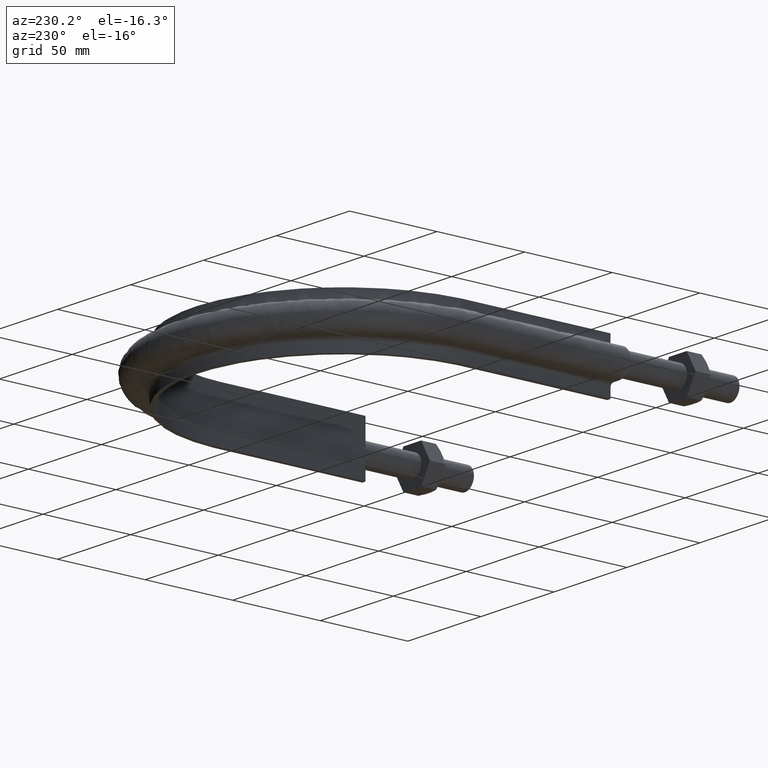
[diagram: clean part render]
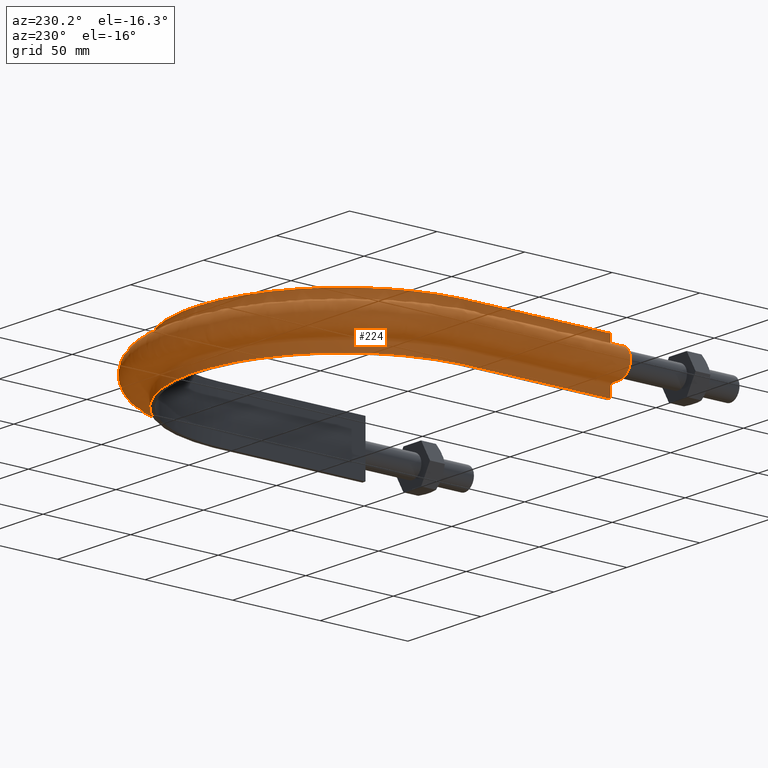
[diagram: same view with one face highlighted and labeled with its STEP entity id]
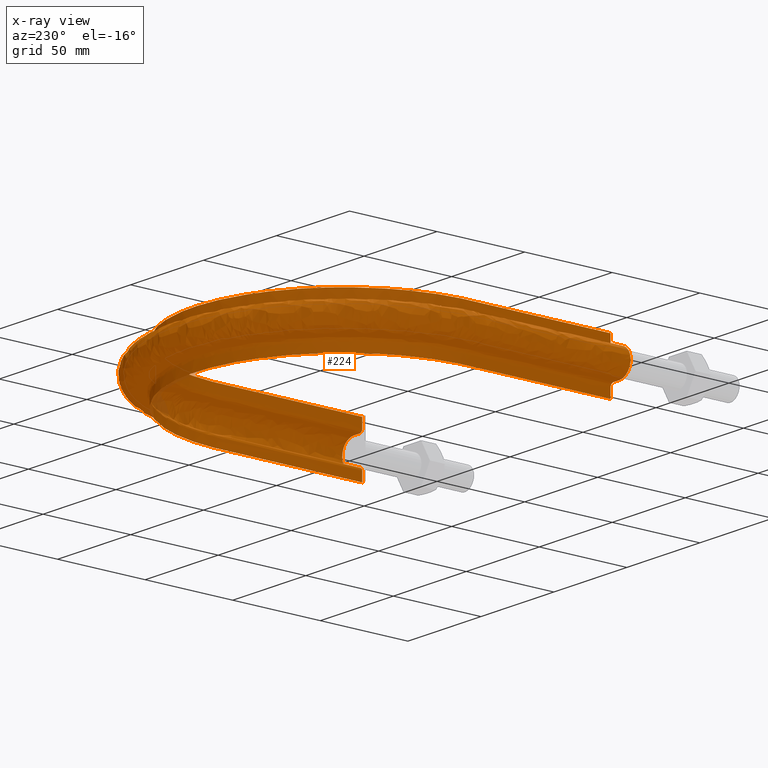
[diagram: x-ray of the same camera — body ghosted, the highlighted face saturated]
A machine part, auxiliary view. The second image highlights one B-rep face of the part: STEP entity #224.
The next image is the same camera in x-ray: the body ghosted, the highlighted face saturated — about 1% of this face is hidden behind the body in this view.
In plain terms, the highlighted face is a freeform B-spline surface patch.
Its self-contained STEP definition (entity closure, byte-faithful):
#224 = ADVANCED_FACE( '', ( #270 ), #271, .F. );
#270 = FACE_OUTER_BOUND( '', #367, .T. );
#271 = B_SPLINE_SURFACE_WITH_KNOTS( '', 3, 3, ( ( #368, #369, #370, #371, #372, #373, #374, #375, #376, #377, #378, #379, #380, #381, #382, #383, #384 ), ( #385, #386, #387, #388, #389, #390, #391, #392, #393, #394, #395, #396, #397, #398, #399, #400, #401 ), ( #402, #403, #404, #405, #406, #407, #408, #409, #410, #411, #412, #413, #414, #415, #416, #417, #418 ), ( #419, #420, #421, #422, #423, #424, #425, #426, #427, #428, #429, #430, #431, #432, #433, #434, #435 ), ( #436, #437, #438, #439, #440, #441, #442, #443, #444, #445, #446, #447, #448, #449, #450, #451, #452 ), ( #453, #454, #455, #456, #457, #458, #459, #460, #461, #462, #463, #464, #465, #466, #467, #468, #469 ), ( #470, #471, #472, #473, #474, #475, #476, #477, #478, #479, #480, #481, #482, #483, #484, #485, #486 ), ( #487, #488, #489, #490, #491, #492, #493, #494, #495, #496, #497, #498, #499, #500, #501, #502, #503 ), ( #504, #505, #506, #507, #508, #509, #510, #511, #512, #513, #514, #515, #516, #517, #518, #519, #520 ), ( #521, #522, #523, #524, #525, #526, #527, #528, #529, #530, #531, #532, #533, #534, #535, #536, #537 ), ( #538, #539, #540, #541, #542, #543, #544, #545, #546, #547, #548, #549, #550, #551, #552, #553, #554 ), ( #555, #556, #557, #558, #559, #560, #561, #562, #563, #564, #565, #566, #567, #568, #569, #570, #571 ), ( #572, #573, #574, #575, #576, #577, #578, #579, #580, #581, #582, #583, #584, #585, #586, #587, #588 ), ( #589, #590, #591, #592, #593, #594, #595, #596, #597, #598, #599, #600, #601, #602, #603, #604, #605 ), ( #606, #607, #608, #609, #610, #611, #612, #613, #614, #615, #616, #617, #618, #619, #620, #621, #622 ), ( #623, #624, #625, #626, #627, #628, #629, #630, #631, #632, #633, #634, #635, #636, #637, #638, #639 ), ( #640, #641, #642, #643, #644, #645, #646, #647, #648, #649, #650, #651, #652, #653, #654, #655, #656 ), ( #657, #658, #659, #660, #661, #662, #663, #664, #665, #666, #667, #668, #669, #670, #671, #672, #673 ), ( #674, #675, #676, #677, #678, #679, #680, #681, #682, #683, #684, #685, #686, #687, #688, #689, #690 ), ( #691, #692, #693, #694, #695, #696, #697, #698, #699, #700, #701, #702, #703, #704, #705, #706, #707 ), ( #708, #709, #710, #711, #712, #713, #714, #715, #716, #717, #718, #719, #720, #721, #722, #723, #724 ), ( #725, #726, #727, #728, #729, #730, #731, #732, #733, #734, #735, #736, #737, #738, #739, #740, #741 ), ( #742, #743, #744, #745, #746, #747, #748, #749, #750, #751, #752, #753, #754, #755, #756, #757, #758 ), ( #759, #760, #761, #762, #763, #764, #765, #766, #767, #768, #769, #770, #771, #772, #773, #774, #775 ), ( #776, #777, #778, #779, #780, #781, #782, #783, #784, #785, #786, #787, #788, #789, #790, #791, #792 ), ( #793, #794, #795, #796, #797, #798, #799, #800, #801, #802, #803, #804, #805, #806, #807, #808, #809 ), ( #810, #811, #812, #813, #814, #815, #816, #817, #818, #819, #820, #821, #822, #823, #824, #825, #826 ), ( #827, #828, #829, #830, #831, #832, #833, #834, #835, #836, #837, #838, #839, #840, #841, #842, #843 ), ( #844, #845, #846, #847, #848, #849, #850, #851, #852, #853, #854, #855, #856, #857, #858, #859, #860 ), ( #861, #862, #863, #864, #865, #866, #867, #868, #869, #870, #871, #872, #873, #874, #875, #876, #877 ), ( #878, #879, #880, #881, #882, #883, #884, #885, #886, #887, #888, #889, #890, #891, #892, #893, #894 ) ), .UNSPECIFIED., .F., .F., .F., ( 4, 3, 1, 1, 1, 3, 3, 1, 1, 1, 3, 3, 1, 1, 1, 3, 4 ), ( 4, 3, 1, 1, 1, 1, 1, 1, 1, 3, 4 ), ( 0.105263157894737, 0.157894736842105, 0.210526315789474, 0.263157894736842, 0.315789473684211, 0.368421052631579, 0.421052631578947, 0.473684210526316, 0.526315789473684, 0.578947368421053, 0.631578947368421, 0.684210526315789, 0.736842105263158, 0.789473684210526, 0.842105263157895, 0.894736842105263, 0.947368421052632 ), ( 0.000000000000000, 1.00000000000000, 2.00000000000000, 3.00000000000000, 4.00000000000000, 5.00000000000000, 6.00000000000000, 7.00000000000000, 8.00000000000000, 9.00000000000000, 10.0000000000000 ), .UNSPECIFIED. );
#367 = EDGE_LOOP( '', ( #1401, #1402, #1403, #1404 ) );
#368 = CARTESIAN_POINT( '', ( 85.0500000000000, 63.5000000000000, -15.0000000000000 ) );
#369 = CARTESIAN_POINT( '', ( 85.0500000000000, 90.7166666666667, -15.0000000000000 ) );
#370 = CARTESIAN_POINT( '', ( 85.0500000000000, 117.933333333333, -15.0000000000000 ) );
#371 = CARTESIAN_POINT( '', ( 85.0500000000000, 145.150000000000, -15.0000000000000 ) );
#372 = CARTESIAN_POINT( '', ( 85.0500000000000, 156.271250144316, -15.0000000000000 ) );
#373 = CARTESIAN_POINT( '', ( 80.6216056780530, 178.549331025117, -15.0000000000000 ) );
#374 = CARTESIAN_POINT( '', ( 61.7051055673243, 206.853821731524, -15.0000000000000 ) );
#375 = CARTESIAN_POINT( '', ( 33.3945624921453, 225.771972488282, -15.0000000000000 ) );
#376 = CARTESIAN_POINT( '', ( 5.96865903638612E-014, 232.414013755859, -15.0000000000000 ) );
#377 = CARTESIAN_POINT( '', ( -33.3945624921452, 225.771972488282, -15.0000000000000 ) );
#378 = CARTESIAN_POINT( '', ( -61.7051055673243, 206.853821731524, -15.0000000000000 ) );
#379 = CARTESIAN_POINT( '', ( -80.6216056780529, 178.549331025117, -15.0000000000000 ) );
#380 = CARTESIAN_POINT( '', ( -85.0500000000000, 156.271250144316, -15.0000000000000 ) );
#381 = CARTESIAN_POINT( '', ( -85.0500000000000, 145.150000000000, -15.0000000000000 ) );
#382 = CARTESIAN_POINT( '', ( -85.0499999999999, 117.933333333333, -15.0000000000000 ) );
#383 = CARTESIAN_POINT( '', ( -85.0499999999999, 90.7166666666667, -15.0000000000000 ) );
#384 = CARTESIAN_POINT( '', ( -85.0499999999999, 63.5000000000001, -15.0000000000000 ) );
#385 = CARTESIAN_POINT( '', ( 85.0500000000000, 63.5000000000000, -13.2666666666667 ) );
#386 = CARTESIAN_POINT( '', ( 85.0500000000000, 90.7166666666667, -13.2666666666667 ) );
#387 = CARTESIAN_POINT( '', ( 85.0500000000000, 117.933333333333, -13.2666666666667 ) );
#388 = CARTESIAN_POINT( '', ( 85.0500000000000, 145.150000000000, -13.2666666666667 ) );
#389 = CARTESIAN_POINT( '', ( 85.0500000000000, 156.271250144316, -13.2666666666667 ) );
#390 = CARTESIAN_POINT( '', ( 80.6216056780530, 178.549331025117, -13.2666666666667 ) );
#391 = CARTESIAN_POINT( '', ( 61.7051055673243, 206.853821731524, -13.2666666666667 ) );
#392 = CARTESIAN_POINT( '', ( 33.3945624921453, 225.771972488282, -13.2666666666667 ) );
#393 = CARTESIAN_POINT( '', ( 5.96865903638612E-014, 232.414013755859, -13.2666666666667 ) );
#394 = CARTESIAN_POINT( '', ( -33.3945624921452, 225.771972488282, -13.2666666666667 ) );
#395 = CARTESIAN_POINT( '', ( -61.7051055673243, 206.853821731524, -13.2666666666667 ) );
#396 = CARTESIAN_POINT( '', ( -80.6216056780529, 178.549331025117, -13.2666666666667 ) );
#397 = CARTESIAN_POINT( '', ( -85.0500000000000, 156.271250144316, -13.2666666666667 ) );
#398 = CARTESIAN_POINT( '', ( -85.0500000000000, 145.150000000000, -13.2666666666667 ) );
#399 = CARTESIAN_POINT( '', ( -85.0499999999999, 117.933333333333, -13.2666666666667 ) );
#400 = CARTESIAN_POINT( '', ( -85.0499999999999, 90.7166666666667, -13.2666666666667 ) );
#401 = CARTESIAN_POINT( '', ( -85.0499999999999, 63.5000000000001, -13.2666666666667 ) );
#402 = CARTESIAN_POINT( '', ( 85.0500000000000, 63.5000000000000, -11.5333333333333 ) );
#403 = CARTESIAN_POINT( '', ( 85.0500000000000, 90.7166666666667, -11.5333333333333 ) );
#404 = CARTESIAN_POINT( '', ( 85.0500000000000, 117.933333333333, -11.5333333333333 ) );
#405 = CARTESIAN_POINT( '', ( 85.0500000000000, 145.150000000000, -11.5333333333333 ) );
#406 = CARTESIAN_POINT( '', ( 85.0500000000000, 156.271250144316, -11.5333333333333 ) );
#407 = CARTESIAN_POINT( '', ( 80.6216056780530, 178.549331025117, -11.5333333333333 ) );
#408 = CARTESIAN_POINT( '', ( 61.7051055673243, 206.853821731524, -11.5333333333333 ) );
#409 = CARTESIAN_POINT( '', ( 33.3945624921453, 225.771972488282, -11.5333333333333 ) );
#410 = CARTESIAN_POINT( '', ( 5.96865903638612E-014, 232.414013755859, -11.5333333333333 ) );
#411 = CARTESIAN_POINT( '', ( -33.3945624921452, 225.771972488282, -11.5333333333333 ) );
#412 = CARTESIAN_POINT( '', ( -61.7051055673243, 206.853821731524, -11.5333333333333 ) );
#413 = CARTESIAN_POINT( '', ( -80.6216056780529, 178.549331025117, -11.5333333333333 ) );
#414 = CARTESIAN_POINT( '', ( -85.0500000000000, 156.271250144316, -11.5333333333333 ) );
#415 = CARTESIAN_POINT( '', ( -85.0500000000000, 145.150000000000, -11.5333333333333 ) );
#416 = CARTESIAN_POINT( '', ( -85.0499999999999, 117.933333333333, -11.5333333333333 ) );
#417 = CARTESIAN_POINT( '', ( -85.0499999999999, 90.7166666666667, -11.5333333333333 ) );
#418 = CARTESIAN_POINT( '', ( -85.0499999999999, 63.5000000000001, -11.5333333333333 ) );
#419 = CARTESIAN_POINT( '', ( 85.0500000000000, 63.5000000000000, -9.79999999999998 ) );
#420 = CARTESIAN_POINT( '', ( 85.0500000000000, 90.7166666666667, -9.79999999999998 ) );
#421 = CARTESIAN_POINT( '', ( 85.0500000000000, 117.933333333333, -9.79999999999999 ) );
#422 = CARTESIAN_POINT( '', ( 85.0500000000000, 145.150000000000, -9.79999999999999 ) );
#423 = CARTESIAN_POINT( '', ( 85.0500000000000, 156.271250144316, -9.79999999999999 ) );
#424 = CARTESIAN_POINT( '', ( 80.6216056780530, 178.549331025117, -9.80000000000000 ) );
#425 = CARTESIAN_POINT( '', ( 61.7051055673243, 206.853821731524, -9.79999999999998 ) );
#426 = CARTESIAN_POINT( '', ( 33.3945624921453, 225.771972488282, -9.80000000000000 ) );
#427 = CARTESIAN_POINT( '', ( 5.96865903638612E-014, 232.414013755859, -9.79999999999998 ) );
#428 = CARTESIAN_POINT( '', ( -33.3945624921452, 225.771972488282, -9.80000000000000 ) );
#429 = CARTESIAN_POINT( '', ( -61.7051055673243, 206.853821731524, -9.79999999999998 ) );
#430 = CARTESIAN_POINT( '', ( -80.6216056780529, 178.549331025117, -9.80000000000000 ) );
#431 = CARTESIAN_POINT( '', ( -85.0500000000000, 156.271250144316, -9.79999999999999 ) );
#432 = CARTESIAN_POINT( '', ( -85.0500000000000, 145.150000000000, -9.79999999999999 ) );
#433 = CARTESIAN_POINT( '', ( -85.0499999999999, 117.933333333333, -9.79999999999999 ) );
#434 = CARTESIAN_POINT( '', ( -85.0499999999999, 90.7166666666667, -9.79999999999999 ) );
#435 = CARTESIAN_POINT( '', ( -85.0499999999999, 63.5000000000001, -9.79999999999999 ) );
#436 = CARTESIAN_POINT( '', ( 85.0500000000000, 63.5000000000000, -9.53823584172332 ) );
#437 = CARTESIAN_POINT( '', ( 85.0500000000000, 90.7166666666667, -9.53823584172332 ) );
#438 = CARTESIAN_POINT( '', ( 85.0500000000000, 117.933333333333, -9.53823584172332 ) );
#439 = CARTESIAN_POINT( '', ( 85.0500000000000, 145.150000000000, -9.53823584172332 ) );
#440 = CARTESIAN_POINT( '', ( 85.0500000000000, 156.271250144316, -9.53823584172332 ) );
#441 = CARTESIAN_POINT( '', ( 80.6216056780530, 178.549331025117, -9.53823584172333 ) );
#442 = CARTESIAN_POINT( '', ( 61.7051055673243, 206.853821731524, -9.53823584172332 ) );
#443 = CARTESIAN_POINT( '', ( 33.3945624921453, 225.771972488282, -9.53823584172333 ) );
#444 = CARTESIAN_POINT( '', ( 5.96865903638612E-014, 232.414013755859, -9.53823584172332 ) );
#445 = CARTESIAN_POINT( '', ( -33.3945624921452, 225.771972488282, -9.53823584172333 ) );
#446 = CARTESIAN_POINT( '', ( -61.7051055673243, 206.853821731524, -9.53823584172332 ) );
#447 = CARTESIAN_POINT( '', ( -80.6216056780529, 178.549331025117, -9.53823584172333 ) );
#448 = CARTESIAN_POINT( '', ( -85.0500000000000, 156.271250144316, -9.53823584172332 ) );
#449 = CARTESIAN_POINT( '', ( -85.0500000000000, 145.150000000000, -9.53823584172332 ) );
#450 = CARTESIAN_POINT( '', ( -85.0499999999999, 117.933333333333, -9.53823584172332 ) );
#451 = CARTESIAN_POINT( '', ( -85.0499999999999, 90.7166666666667, -9.53823584172332 ) );
#452 = CARTESIAN_POINT( '', ( -85.0499999999999, 63.5000000000001, -9.53823584172332 ) );
#453 = CARTESIAN_POINT( '', ( 85.1541362568359, 63.5000000000000, -9.01470752516999 ) );
#454 = CARTESIAN_POINT( '', ( 85.1541362568359, 90.7166666666667, -9.01470752516999 ) );
#455 = CARTESIAN_POINT( '', ( 85.1541362568359, 117.933333333333, -9.01470752517000 ) );
#456 = CARTESIAN_POINT( '', ( 85.1541362568359, 145.150000000000, -9.01470752517000 ) );
#457 = CARTESIAN_POINT( '', ( 85.1541362568359, 156.285059470567, -9.01470752517000 ) );
#458 = CARTESIAN_POINT( '', ( 80.7203197548950, 178.590136276193, -9.01470752517000 ) );
#459 = CARTESIAN_POINT( '', ( 61.7806580508216, 206.929396684577, -9.01470752516999 ) );
#460 = CARTESIAN_POINT( '', ( 33.4354512015704, 225.870680145251, -9.01470752517000 ) );
#461 = CARTESIAN_POINT( '', ( 5.96996753509341E-014, 232.520864312629, -9.01470752516999 ) );
#462 = CARTESIAN_POINT( '', ( -33.4354512015703, 225.870680145251, -9.01470752517001 ) );
#463 = CARTESIAN_POINT( '', ( -61.7806580508216, 206.929396684577, -9.01470752516999 ) );
#464 = CARTESIAN_POINT( '', ( -80.7203197548949, 178.590136276193, -9.01470752517001 ) );
#465 = CARTESIAN_POINT( '', ( -85.1541362568359, 156.285059470567, -9.01470752517000 ) );
#466 = CARTESIAN_POINT( '', ( -85.1541362568359, 145.150000000000, -9.01470752517000 ) );
#467 = CARTESIAN_POINT( '', ( -85.1541362568359, 117.933333333333, -9.01470752517000 ) );
#468 = CARTESIAN_POINT( '', ( -85.1541362568359, 90.7166666666667, -9.01470752517000 ) );
#469 = CARTESIAN_POINT( '', ( -85.1541362568359, 63.5000000000001, -9.01470752517000 ) );
#470 = CARTESIAN_POINT( '', ( 85.5989687109389, 63.5000000000000, -8.34896871093886 ) );
#471 = CARTESIAN_POINT( '', ( 85.5989687109389, 90.7166666666667, -8.34896871093886 ) );
#472 = CARTESIAN_POINT( '', ( 85.5989687109389, 117.933333333333, -8.34896871093886 ) );
#473 = CARTESIAN_POINT( '', ( 85.5989687109389, 145.150000000000, -8.34896871093886 ) );
#474 = CARTESIAN_POINT( '', ( 85.5989687109389, 156.344047921589, -8.34896871093886 ) );
#475 = CARTESIAN_POINT( '', ( 81.1419906156532, 178.764441561673, -8.34896871093887 ) );
#476 = CARTESIAN_POINT( '', ( 62.1033909554682, 207.252225571044, -8.34896871093886 ) );
#477 = CARTESIAN_POINT( '', ( 33.6101129909540, 226.292323582632, -8.34896871093887 ) );
#478 = CARTESIAN_POINT( '', ( 5.80208462107862E-014, 232.977291275093, -8.34896871093886 ) );
#479 = CARTESIAN_POINT( '', ( -33.6101129909539, 226.292323582632, -8.34896871093887 ) );
#480 = CARTESIAN_POINT( '', ( -62.1033909554682, 207.252225571044, -8.34896871093886 ) );
#481 = CARTESIAN_POINT( '', ( -81.1419906156532, 178.764441561673, -8.34896871093887 ) );
#482 = CARTESIAN_POINT( '', ( -85.5989687109388, 156.344047921589, -8.34896871093886 ) );
#483 = CARTESIAN_POINT( '', ( -85.5989687109388, 145.150000000000, -8.34896871093886 ) );
#484 = CARTESIAN_POINT( '', ( -85.5989687109388, 117.933333333333, -8.34896871093886 ) );
#485 = CARTESIAN_POINT( '', ( -85.5989687109388, 90.7166666666667, -8.34896871093886 ) );
#486 = CARTESIAN_POINT( '', ( -85.5989687109388, 63.5000000000001, -8.34896871093886 ) );
#487 = CARTESIAN_POINT( '', ( 86.2647075251700, 63.5000000000000, -7.90413625683589 ) );
#488 = CARTESIAN_POINT( '', ( 86.2647075251700, 90.7166666666667, -7.90413625683589 ) );
#489 = CARTESIAN_POINT( '', ( 86.2647075251700, 117.933333333333, -7.90413625683590 ) );
#490 = CARTESIAN_POINT( '', ( 86.2647075251700, 145.150000000000, -7.90413625683590 ) );
#491 = CARTESIAN_POINT( '', ( 86.2647075251700, 156.432330377319, -7.90413625683590 ) );
#492 = CARTESIAN_POINT( '', ( 81.7730656558122, 179.025307856386, -7.90413625683590 ) );
#493 = CARTESIAN_POINT( '', ( 62.5863948803642, 207.735373142885, -7.90413625683589 ) );
#494 = CARTESIAN_POINT( '', ( 33.8715128314630, 226.923357580806, -7.90413625683590 ) );
#495 = CARTESIAN_POINT( '', ( 5.63697745199113E-014, 233.660382497352, -7.90413625683589 ) );
#496 = CARTESIAN_POINT( '', ( -33.8715128314629, 226.923357580806, -7.90413625683591 ) );
#497 = CARTESIAN_POINT( '', ( -62.5863948803641, 207.735373142885, -7.90413625683589 ) );
#498 = CARTESIAN_POINT( '', ( -81.7730656558121, 179.025307856386, -7.90413625683591 ) );
#499 = CARTESIAN_POINT( '', ( -86.2647075251700, 156.432330377319, -7.90413625683590 ) );
#500 = CARTESIAN_POINT( '', ( -86.2647075251700, 145.150000000000, -7.90413625683590 ) );
#501 = CARTESIAN_POINT( '', ( -86.2647075251700, 117.933333333333, -7.90413625683590 ) );
#502 = CARTESIAN_POINT( '', ( -86.2647075251700, 90.7166666666667, -7.90413625683590 ) );
#503 = CARTESIAN_POINT( '', ( -86.2647075251700, 63.5000000000001, -7.90413625683590 ) );
#504 = CARTESIAN_POINT( '', ( 86.7882358417233, 63.5000000000000, -7.79999999999998 ) );
#505 = CARTESIAN_POINT( '', ( 86.7882358417233, 90.7166666666667, -7.79999999999998 ) );
#506 = CARTESIAN_POINT( '', ( 86.7882358417233, 117.933333333333, -7.79999999999999 ) );
#507 = CARTESIAN_POINT( '', ( 86.7882358417233, 145.150000000000, -7.79999999999999 ) );
#508 = CARTESIAN_POINT( '', ( 86.7882358417233, 156.501754548543, -7.79999999999999 ) );
#509 = CARTESIAN_POINT( '', ( 82.2693348327488, 179.230449706609, -7.79999999999999 ) );
#510 = CARTESIAN_POINT( '', ( 62.9662228643784, 208.115314088982, -7.79999999999998 ) );
#511 = CARTESIAN_POINT( '', ( 34.0770742551378, 227.419594482862, -7.79999999999999 ) );
#512 = CARTESIAN_POINT( '', ( 5.81702806681538E-014, 234.197556521154, -7.79999999999998 ) );
#513 = CARTESIAN_POINT( '', ( -34.0770742551378, 227.419594482862, -7.79999999999999 ) );
#514 = CARTESIAN_POINT( '', ( -62.9662228643783, 208.115314088982, -7.79999999999998 ) );
#515 = CARTESIAN_POINT( '', ( -82.2693348327487, 179.230449706609, -7.80000000000000 ) );
#516 = CARTESIAN_POINT( '', ( -86.7882358417233, 156.501754548543, -7.79999999999999 ) );
#517 = CARTESIAN_POINT( '', ( -86.7882358417233, 145.150000000000, -7.79999999999999 ) );
#518 = CARTESIAN_POINT( '', ( -86.7882358417233, 117.933333333333, -7.79999999999999 ) );
#519 = CARTESIAN_POINT( '', ( -86.7882358417233, 90.7166666666667, -7.79999999999999 ) );
#520 = CARTESIAN_POINT( '', ( -86.7882358417233, 63.5000000000001, -7.79999999999999 ) );
#521 = CARTESIAN_POINT( '', ( 87.0500000000000, 63.5000000000000, -7.79999999999998 ) );
#522 = CARTESIAN_POINT( '', ( 87.0500000000000, 90.7166666666667, -7.79999999999998 ) );
#523 = CARTESIAN_POINT( '', ( 87.0500000000000, 117.933333333333, -7.79999999999999 ) );
#524 = CARTESIAN_POINT( '', ( 87.0500000000000, 145.150000000000, -7.79999999999999 ) );
#525 = CARTESIAN_POINT( '', ( 87.0500000000000, 156.536466634155, -7.79999999999999 ) );
#526 = CARTESIAN_POINT( '', ( 82.5174694212171, 179.333020631721, -7.79999999999999 ) );
#527 = CARTESIAN_POINT( '', ( 63.1561368563854, 208.305284562031, -7.79999999999998 ) );
#528 = CARTESIAN_POINT( '', ( 34.1798549669753, 227.667712933890, -7.79999999999999 ) );
#529 = CARTESIAN_POINT( '', ( 5.82031720042866E-014, 234.466143533055, -7.79999999999998 ) );
#530 = CARTESIAN_POINT( '', ( -34.1798549669752, 227.667712933890, -7.79999999999999 ) );
#531 = CARTESIAN_POINT( '', ( -63.1561368563854, 208.305284562031, -7.79999999999998 ) );
#532 = CARTESIAN_POINT( '', ( -82.5174694212170, 179.333020631721, -7.80000000000000 ) );
#533 = CARTESIAN_POINT( '', ( -87.0500000000000, 156.536466634155, -7.79999999999999 ) );
#534 = CARTESIAN_POINT( '', ( -87.0500000000000, 145.150000000000, -7.79999999999999 ) );
#535 = CARTESIAN_POINT( '', ( -87.0499999999999, 117.933333333333, -7.79999999999999 ) );
#536 = CARTESIAN_POINT( '', ( -87.0499999999999, 90.7166666666667, -7.79999999999999 ) );
#537 = CARTESIAN_POINT( '', ( -87.0499999999999, 63.5000000000001, -7.79999999999999 ) );
#538 = CARTESIAN_POINT( '', ( 88.3666666666667, 63.5000000000000, -7.79999999999999 ) );
#539 = CARTESIAN_POINT( '', ( 88.3666666666667, 90.7166666666667, -7.79999999999999 ) );
#540 = CARTESIAN_POINT( '', ( 88.3666666666667, 117.933333333333, -7.79999999999999 ) );
#541 = CARTESIAN_POINT( '', ( 88.3666666666667, 145.150000000000, -7.79999999999999 ) );
#542 = CARTESIAN_POINT( '', ( 88.3666666666667, 156.711067489966, -7.79999999999999 ) );
#543 = CARTESIAN_POINT( '', ( 83.7655797188001, 179.848949622735, -7.80000000000000 ) );
#544 = CARTESIAN_POINT( '', ( 64.1113991216840, 209.260830925448, -7.79999999999999 ) );
#545 = CARTESIAN_POINT( '', ( 34.6968391795717, 228.915742060582, -7.80000000000000 ) );
#546 = CARTESIAN_POINT( '', ( 6.18380614912050E-014, 235.817128969709, -7.79999999999999 ) );
#547 = CARTESIAN_POINT( '', ( -34.6968391795716, 228.915742060582, -7.80000000000000 ) );
#548 = CARTESIAN_POINT( '', ( -64.1113991216840, 209.260830925448, -7.79999999999998 ) );
#549 = CARTESIAN_POINT( '', ( -83.7655797188000, 179.848949622735, -7.80000000000000 ) );
#550 = CARTESIAN_POINT( '', ( -88.3666666666666, 156.711067489966, -7.79999999999999 ) );
#551 = CARTESIAN_POINT( '', ( -88.3666666666666, 145.150000000000, -7.79999999999999 ) );
#552 = CARTESIAN_POINT( '', ( -88.3666666666666, 117.933333333333, -7.79999999999999 ) );
#553 = CARTESIAN_POINT( '', ( -88.3666666666666, 90.7166666666667, -7.79999999999999 ) );
#554 = CARTESIAN_POINT( '', ( -88.3666666666666, 63.5000000000001, -7.79999999999999 ) );
#555 = CARTESIAN_POINT( '', ( 89.6833333333333, 63.5000000000000, -7.79999999999999 ) );
#556 = CARTESIAN_POINT( '', ( 89.6833333333333, 90.7166666666667, -7.79999999999999 ) );
#557 = CARTESIAN_POINT( '', ( 89.6833333333333, 117.933333333333, -7.79999999999999 ) );
#558 = CARTESIAN_POINT( '', ( 89.6833333333333, 145.150000000000, -7.79999999999999 ) );
#559 = CARTESIAN_POINT( '', ( 89.6833333333333, 156.885668345777, -7.79999999999999 ) );
#560 = CARTESIAN_POINT( '', ( 85.0136900163831, 180.364878613750, -7.80000000000000 ) );
#561 = CARTESIAN_POINT( '', ( 65.0666613869826, 210.216377288864, -7.79999999999999 ) );
#562 = CARTESIAN_POINT( '', ( 35.2138233921681, 230.163771187274, -7.80000000000000 ) );
#563 = CARTESIAN_POINT( '', ( 5.85340570742162E-014, 237.168114406363, -7.79999999999999 ) );
#564 = CARTESIAN_POINT( '', ( -35.2138233921680, 230.163771187274, -7.80000000000000 ) );
#565 = CARTESIAN_POINT( '', ( -65.0666613869825, 210.216377288864, -7.79999999999998 ) );
#566 = CARTESIAN_POINT( '', ( -85.0136900163831, 180.364878613750, -7.80000000000000 ) );
#567 = CARTESIAN_POINT( '', ( -89.6833333333333, 156.885668345777, -7.79999999999999 ) );
#568 = CARTESIAN_POINT( '', ( -89.6833333333333, 145.150000000000, -7.79999999999999 ) );
#569 = CARTESIAN_POINT( '', ( -89.6833333333333, 117.933333333333, -7.79999999999999 ) );
#570 = CARTESIAN_POINT( '', ( -89.6833333333333, 90.7166666666667, -7.79999999999999 ) );
#571 = CARTESIAN_POINT( '', ( -89.6833333333333, 63.5000000000001, -7.79999999999999 ) );
#572 = CARTESIAN_POINT( '', ( 91.0000000000000, 63.5000000000000, -7.79999999999999 ) );
#573 = CARTESIAN_POINT( '', ( 91.0000000000000, 90.7166666666667, -7.79999999999999 ) );
#574 = CARTESIAN_POINT( '', ( 91.0000000000000, 117.933333333333, -7.79999999999999 ) );
#575 = CARTESIAN_POINT( '', ( 91.0000000000000, 145.150000000000, -7.79999999999999 ) );
#576 = CARTESIAN_POINT( '', ( 91.0000000000000, 157.060269201588, -7.79999999999999 ) );
#577 = CARTESIAN_POINT( '', ( 86.2618003139662, 180.880807604765, -7.80000000000000 ) );
#578 = CARTESIAN_POINT( '', ( 66.0219236522812, 211.171923652281, -7.79999999999999 ) );
#579 = CARTESIAN_POINT( '', ( 35.7308076047645, 231.411800313966, -7.80000000000000 ) );
#580 = CARTESIAN_POINT( '', ( 6.21689465611346E-014, 238.519099843017, -7.79999999999999 ) );
#581 = CARTESIAN_POINT( '', ( -35.7308076047645, 231.411800313966, -7.80000000000000 ) );
#582 = CARTESIAN_POINT( '', ( -66.0219236522811, 211.171923652281, -7.79999999999998 ) );
#583 = CARTESIAN_POINT( '', ( -86.2618003139661, 180.880807604765, -7.80000000000000 ) );
#584 = CARTESIAN_POINT( '', ( -91.0000000000000, 157.060269201588, -7.79999999999999 ) );
#585 = CARTESIAN_POINT( '', ( -91.0000000000000, 145.150000000000, -7.79999999999999 ) );
#586 = CARTESIAN_POINT( '', ( -91.0000000000000, 117.933333333333, -7.79999999999999 ) );
#587 = CARTESIAN_POINT( '', ( -91.0000000000000, 90.7166666666667, -7.79999999999999 ) );
#588 = CARTESIAN_POINT( '', ( -91.0000000000000, 63.5000000000001, -7.79999999999999 ) );
#589 = CARTESIAN_POINT( '', ( 93.0373902247172, 63.5000000000000, -7.79999999999998 ) );
#590 = CARTESIAN_POINT( '', ( 93.0373902247172, 90.7166666666667, -7.79999999999998 ) );
#591 = CARTESIAN_POINT( '', ( 93.0373902247172, 117.933333333333, -7.79999999999999 ) );
#592 = CARTESIAN_POINT( '', ( 93.0373902247172, 145.150000000000, -7.79999999999999 ) );
#593 = CARTESIAN_POINT( '', ( 93.0373902247172, 157.330443943505, -7.79999999999999 ) );
#594 = CARTESIAN_POINT( '', ( 88.1931074428253, 181.679148376619, -7.79999999999999 ) );
#595 = CARTESIAN_POINT( '', ( 67.5000821343271, 212.650521743488, -7.79999999999998 ) );
#596 = CARTESIAN_POINT( '', ( 36.5307812106458, 233.342981840208, -7.79999999999999 ) );
#597 = CARTESIAN_POINT( '', ( 6.06902263789474E-014, 240.609594416972, -7.79999999999998 ) );
#598 = CARTESIAN_POINT( '', ( -36.5307812106457, 233.342981840208, -7.79999999999999 ) );
#599 = CARTESIAN_POINT( '', ( -67.5000821343271, 212.650521743488, -7.79999999999998 ) );
#600 = CARTESIAN_POINT( '', ( -88.1931074428252, 181.679148376619, -7.80000000000000 ) );
#601 = CARTESIAN_POINT( '', ( -93.0373902247171, 157.330443943505, -7.79999999999999 ) );
#602 = CARTESIAN_POINT( '', ( -93.0373902247171, 145.150000000000, -7.79999999999999 ) );
#603 = CARTESIAN_POINT( '', ( -93.0373902247171, 117.933333333333, -7.79999999999999 ) );
#604 = CARTESIAN_POINT( '', ( -93.0373902247171, 90.7166666666667, -7.79999999999999 ) );
#605 = CARTESIAN_POINT( '', ( -93.0373902247171, 63.5000000000001, -7.79999999999999 ) );
#606 = CARTESIAN_POINT( '', ( 97.1121706741516, 63.5000000000000, -6.11217067415154 ) );
#607 = CARTESIAN_POINT( '', ( 97.1121706741516, 90.7166666666667, -6.11217067415154 ) );
#608 = CARTESIAN_POINT( '', ( 97.1121706741516, 117.933333333333, -6.11217067415154 ) );
#609 = CARTESIAN_POINT( '', ( 97.1121706741516, 145.150000000000, -6.11217067415154 ) );
#610 = CARTESIAN_POINT( '', ( 97.1121706741516, 157.870793427338, -6.11217067415154 ) );
#611 = CARTESIAN_POINT( '', ( 92.0557217005435, 183.275829920327, -6.11217067415155 ) );
#612 = CARTESIAN_POINT( '', ( 70.4563990984190, 215.607717925903, -6.11217067415154 ) );
#613 = CARTESIAN_POINT( '', ( 38.1307284224084, 237.205344892691, -6.11217067415155 ) );
#614 = CARTESIAN_POINT( '', ( 6.12022329665267E-014, 244.790583564882, -6.11217067415154 ) );
#615 = CARTESIAN_POINT( '', ( -38.1307284224083, 237.205344892691, -6.11217067415155 ) );
#616 = CARTESIAN_POINT( '', ( -70.4563990984190, 215.607717925902, -6.11217067415153 ) );
#617 = CARTESIAN_POINT( '', ( -92.0557217005435, 183.275829920327, -6.11217067415155 ) );
#618 = CARTESIAN_POINT( '', ( -97.1121706741515, 157.870793427338, -6.11217067415154 ) );
#619 = CARTESIAN_POINT( '', ( -97.1121706741515, 145.150000000000, -6.11217067415154 ) );
#620 = CARTESIAN_POINT( '', ( -97.1121706741515, 117.933333333333, -6.11217067415154 ) );
#621 = CARTESIAN_POINT( '', ( -97.1121706741515, 90.7166666666667, -6.11217067415154 ) );
#622 = CARTESIAN_POINT( '', ( -97.1121706741515, 63.5000000000001, -6.11217067415154 ) );
#623 = CARTESIAN_POINT( '', ( 99.6439146629242, 63.5000000000000, -2.58929722408949E-015 ) );
#624 = CARTESIAN_POINT( '', ( 99.6439146629242, 90.7166666666667, -2.58929722408949E-015 ) );
#625 = CARTESIAN_POINT( '', ( 99.6439146629242, 117.933333333333, -2.58929722408950E-015 ) );
#626 = CARTESIAN_POINT( '', ( 99.6439146629242, 145.150000000000, -2.58929722408950E-015 ) );
#627 = CARTESIAN_POINT( '', ( 99.6439146629242, 158.206523554275, -2.58929722408950E-015 ) );
#628 = CARTESIAN_POINT( '', ( 94.4556425181874, 184.267880645619, -2.58929722408950E-015 ) );
#629 = CARTESIAN_POINT( '', ( 72.2932189702198, 217.445084073933, -2.58929722408949E-015 ) );
#630 = CARTESIAN_POINT( '', ( 39.1248081736980, 239.605109631412, -2.58929722408950E-015 ) );
#631 = CARTESIAN_POINT( '', ( 6.15203530754263E-014, 247.388317178680, -2.58929722408949E-015 ) );
#632 = CARTESIAN_POINT( '', ( -39.1248081736980, 239.605109631412, -2.58929722408950E-015 ) );
#633 = CARTESIAN_POINT( '', ( -72.2932189702197, 217.445084073933, -2.58929722408949E-015 ) );
#634 = CARTESIAN_POINT( '', ( -94.4556425181873, 184.267880645619, -2.58929722408950E-015 ) );
#635 = CARTESIAN_POINT( '', ( -99.6439146629242, 158.206523554275, -2.58929722408950E-015 ) );
#636 = CARTESIAN_POINT( '', ( -99.6439146629242, 145.150000000000, -2.58929722408950E-015 ) );
#637 = CARTESIAN_POINT( '', ( -99.6439146629242, 117.933333333333, -2.58929722408950E-015 ) );
#638 = CARTESIAN_POINT( '', ( -99.6439146629242, 90.7166666666667, -2.58929722408950E-015 ) );
#639 = CARTESIAN_POINT( '', ( -99.6439146629242, 63.5000000000001, -2.58929722408950E-015 ) );
#640 = CARTESIAN_POINT( '', ( 97.1121706741516, 63.5000000000000, 6.11217067415153 ) );
#641 = CARTESIAN_POINT( '', ( 97.1121706741516, 90.7166666666667, 6.11217067415153 ) );
#642 = CARTESIAN_POINT( '', ( 97.1121706741516, 117.933333333333, 6.11217067415154 ) );
#643 = CARTESIAN_POINT( '', ( 97.1121706741516, 145.150000000000, 6.11217067415154 ) );
#644 = CARTESIAN_POINT( '', ( 97.1121706741516, 157.870793427338, 6.11217067415154 ) );
#645 = CARTESIAN_POINT( '', ( 92.0557217005435, 183.275829920327, 6.11217067415154 ) );
#646 = CARTESIAN_POINT( '', ( 70.4563990984190, 215.607717925903, 6.11217067415153 ) );
#647 = CARTESIAN_POINT( '', ( 38.1307284224084, 237.205344892691, 6.11217067415154 ) );
#648 = CARTESIAN_POINT( '', ( 6.12022329665267E-014, 244.790583564882, 6.11217067415153 ) );
#649 = CARTESIAN_POINT( '', ( -38.1307284224083, 237.205344892691, 6.11217067415154 ) );
#650 = CARTESIAN_POINT( '', ( -70.4563990984190, 215.607717925902, 6.11217067415153 ) );
#651 = CARTESIAN_POINT( '', ( -92.0557217005435, 183.275829920327, 6.11217067415154 ) );
#652 = CARTESIAN_POINT( '', ( -97.1121706741515, 157.870793427338, 6.11217067415154 ) );
#653 = CARTESIAN_POINT( '', ( -97.1121706741515, 145.150000000000, 6.11217067415154 ) );
#654 = CARTESIAN_POINT( '', ( -97.1121706741515, 117.933333333333, 6.11217067415154 ) );
#655 = CARTESIAN_POINT( '', ( -97.1121706741515, 90.7166666666667, 6.11217067415154 ) );
#656 = CARTESIAN_POINT( '', ( -97.1121706741515, 63.5000000000001, 6.11217067415154 ) );
#657 = CARTESIAN_POINT( '', ( 93.0373902247172, 63.5000000000000, 7.79999999999998 ) );
#658 = CARTESIAN_POINT( '', ( 93.0373902247172, 90.7166666666667, 7.79999999999998 ) );
#659 = CARTESIAN_POINT( '', ( 93.0373902247172, 117.933333333333, 7.79999999999998 ) );
#660 = CARTESIAN_POINT( '', ( 93.0373902247172, 145.150000000000, 7.79999999999998 ) );
#661 = CARTESIAN_POINT( '', ( 93.0373902247172, 157.330443943505, 7.79999999999998 ) );
#662 = CARTESIAN_POINT( '', ( 88.1931074428253, 181.679148376619, 7.79999999999999 ) );
#663 = CARTESIAN_POINT( '', ( 67.5000821343271, 212.650521743488, 7.79999999999998 ) );
#664 = CARTESIAN_POINT( '', ( 36.5307812106458, 233.342981840208, 7.79999999999999 ) );
#665 = CARTESIAN_POINT( '', ( 6.06902263789474E-014, 240.609594416972, 7.79999999999998 ) );
#666 = CARTESIAN_POINT( '', ( -36.5307812106457, 233.342981840208, 7.79999999999999 ) );
#667 = CARTESIAN_POINT( '', ( -67.5000821343271, 212.650521743488, 7.79999999999997 ) );
#668 = CARTESIAN_POINT( '', ( -88.1931074428252, 181.679148376619, 7.79999999999999 ) );
#669 = CARTESIAN_POINT( '', ( -93.0373902247171, 157.330443943505, 7.79999999999998 ) );
#670 = CARTESIAN_POINT( '', ( -93.0373902247171, 145.150000000000, 7.79999999999998 ) );
#671 = CARTESIAN_POINT( '', ( -93.0373902247171, 117.933333333333, 7.79999999999998 ) );
#672 = CARTESIAN_POINT( '', ( -93.0373902247171, 90.7166666666667, 7.79999999999998 ) );
#673 = CARTESIAN_POINT( '', ( -93.0373902247171, 63.5000000000001, 7.79999999999998 ) );
#674 = CARTESIAN_POINT( '', ( 91.0000000000000, 63.5000000000000, 7.79999999999998 ) );
#675 = CARTESIAN_POINT( '', ( 91.0000000000000, 90.7166666666667, 7.79999999999998 ) );
#676 = CARTESIAN_POINT( '', ( 91.0000000000000, 117.933333333333, 7.79999999999998 ) );
#677 = CARTESIAN_POINT( '', ( 91.0000000000000, 145.150000000000, 7.79999999999998 ) );
#678 = CARTESIAN_POINT( '', ( 91.0000000000000, 157.060269201588, 7.79999999999998 ) );
#679 = CARTESIAN_POINT( '', ( 86.2618003139662, 180.880807604765, 7.79999999999999 ) );
#680 = CARTESIAN_POINT( '', ( 66.0219236522812, 211.171923652281, 7.79999999999998 ) );
#681 = CARTESIAN_POINT( '', ( 35.7308076047645, 231.411800313966, 7.79999999999999 ) );
#682 = CARTESIAN_POINT( '', ( 6.04342230851578E-014, 238.519099843017, 7.79999999999998 ) );
#683 = CARTESIAN_POINT( '', ( -35.7308076047645, 231.411800313966, 7.79999999999999 ) );
#684 = CARTESIAN_POINT( '', ( -66.0219236522811, 211.171923652281, 7.79999999999997 ) );
#685 = CARTESIAN_POINT( '', ( -86.2618003139661, 180.880807604765, 7.79999999999999 ) );
#686 = CARTESIAN_POINT( '', ( -91.0000000000000, 157.060269201588, 7.79999999999998 ) );
#687 = CARTESIAN_POINT( '', ( -91.0000000000000, 145.150000000000, 7.79999999999998 ) );
#688 = CARTESIAN_POINT( '', ( -91.0000000000000, 117.933333333333, 7.79999999999998 ) );
#689 = CARTESIAN_POINT( '', ( -91.0000000000000, 90.7166666666667, 7.79999999999998 ) );
#690 = CARTESIAN_POINT( '', ( -91.0000000000000, 63.5000000000001, 7.79999999999998 ) );
#691 = CARTESIAN_POINT( '', ( 89.6833333333333, 63.5000000000000, 7.79999999999999 ) );
#692 = CARTESIAN_POINT( '', ( 89.6833333333333, 90.7166666666667, 7.79999999999999 ) );
#693 = CARTESIAN_POINT( '', ( 89.6833333333333, 117.933333333333, 7.79999999999999 ) );
#694 = CARTESIAN_POINT( '', ( 89.6833333333333, 145.150000000000, 7.79999999999999 ) );
#695 = CARTESIAN_POINT( '', ( 89.6833333333333, 156.885668345777, 7.79999999999999 ) );
#696 = CARTESIAN_POINT( '', ( 85.0136900163831, 180.364878613750, 7.80000000000000 ) );
#697 = CARTESIAN_POINT( '', ( 65.0666613869826, 210.216377288864, 7.79999999999999 ) );
#698 = CARTESIAN_POINT( '', ( 35.2138233921681, 230.163771187274, 7.80000000000000 ) );
#699 = CARTESIAN_POINT( '', ( 5.50646101222626E-014, 237.168114406363, 7.79999999999999 ) );
#700 = CARTESIAN_POINT( '', ( -35.2138233921681, 230.163771187274, 7.80000000000000 ) );
#701 = CARTESIAN_POINT( '', ( -65.0666613869825, 210.216377288864, 7.79999999999998 ) );
#702 = CARTESIAN_POINT( '', ( -85.0136900163831, 180.364878613750, 7.80000000000000 ) );
#703 = CARTESIAN_POINT( '', ( -89.6833333333333, 156.885668345777, 7.79999999999999 ) );
#704 = CARTESIAN_POINT( '', ( -89.6833333333333, 145.150000000000, 7.79999999999999 ) );
#705 = CARTESIAN_POINT( '', ( -89.6833333333333, 117.933333333333, 7.79999999999999 ) );
#706 = CARTESIAN_POINT( '', ( -89.6833333333333, 90.7166666666667, 7.79999999999999 ) );
#707 = CARTESIAN_POINT( '', ( -89.6833333333333, 63.5000000000001, 7.79999999999999 ) );
#708 = CARTESIAN_POINT( '', ( 88.3666666666667, 63.5000000000000, 7.79999999999999 ) );
#709 = CARTESIAN_POINT( '', ( 88.3666666666667, 90.7166666666667, 7.79999999999999 ) );
#710 = CARTESIAN_POINT( '', ( 88.3666666666667, 117.933333333333, 7.79999999999999 ) );
#711 = CARTESIAN_POINT( '', ( 88.3666666666667, 145.150000000000, 7.79999999999999 ) );
#712 = CARTESIAN_POINT( '', ( 88.3666666666667, 156.711067489966, 7.79999999999999 ) );
#713 = CARTESIAN_POINT( '', ( 83.7655797188001, 179.848949622735, 7.80000000000000 ) );
#714 = CARTESIAN_POINT( '', ( 64.1113991216840, 209.260830925448, 7.79999999999999 ) );
#715 = CARTESIAN_POINT( '', ( 34.6968391795717, 228.915742060582, 7.80000000000000 ) );
#716 = CARTESIAN_POINT( '', ( 5.31644441113210E-014, 235.817128969709, 7.79999999999999 ) );
#717 = CARTESIAN_POINT( '', ( -34.6968391795716, 228.915742060582, 7.80000000000000 ) );
#718 = CARTESIAN_POINT( '', ( -64.1113991216840, 209.260830925448, 7.79999999999998 ) );
#719 = CARTESIAN_POINT( '', ( -83.7655797188000, 179.848949622735, 7.80000000000000 ) );
#720 = CARTESIAN_POINT( '', ( -88.3666666666666, 156.711067489966, 7.79999999999999 ) );
#721 = CARTESIAN_POINT( '', ( -88.3666666666666, 145.150000000000, 7.79999999999999 ) );
#722 = CARTESIAN_POINT( '', ( -88.3666666666666, 117.933333333333, 7.79999999999999 ) );
#723 = CARTESIAN_POINT( '', ( -88.3666666666666, 90.7166666666667, 7.79999999999999 ) );
#724 = CARTESIAN_POINT( '', ( -88.3666666666666, 63.5000000000001, 7.79999999999999 ) );
#725 = CARTESIAN_POINT( '', ( 87.0500000000000, 63.5000000000000, 7.79999999999999 ) );
#726 = CARTESIAN_POINT( '', ( 87.0500000000000, 90.7166666666667, 7.79999999999999 ) );
#727 = CARTESIAN_POINT( '', ( 87.0500000000000, 117.933333333333, 7.79999999999999 ) );
#728 = CARTESIAN_POINT( '', ( 87.0500000000000, 145.150000000000, 7.79999999999999 ) );
#729 = CARTESIAN_POINT( '', ( 87.0500000000000, 156.536466634155, 7.79999999999999 ) );
#730 = CARTESIAN_POINT( '', ( 82.5174694212171, 179.333020631721, 7.80000000000000 ) );
#731 = CARTESIAN_POINT( '', ( 63.1561368563854, 208.305284562031, 7.79999999999999 ) );
#732 = CARTESIAN_POINT( '', ( 34.1798549669753, 227.667712933890, 7.80000000000000 ) );
#733 = CARTESIAN_POINT( '', ( 5.29990015763562E-014, 234.466143533055, 7.79999999999999 ) );
#734 = CARTESIAN_POINT( '', ( -34.1798549669752, 227.667712933890, 7.80000000000000 ) );
#735 = CARTESIAN_POINT( '', ( -63.1561368563854, 208.305284562031, 7.79999999999998 ) );
#736 = CARTESIAN_POINT( '', ( -82.5174694212170, 179.333020631721, 7.80000000000000 ) );
#737 = CARTESIAN_POINT( '', ( -87.0500000000000, 156.536466634155, 7.79999999999999 ) );
#738 = CARTESIAN_POINT( '', ( -87.0500000000000, 145.150000000000, 7.79999999999999 ) );
#739 = CARTESIAN_POINT( '', ( -87.0499999999999, 117.933333333333, 7.79999999999999 ) );
#740 = CARTESIAN_POINT( '', ( -87.0499999999999, 90.7166666666667, 7.79999999999999 ) );
#741 = CARTESIAN_POINT( '', ( -87.0499999999999, 63.5000000000001, 7.79999999999999 ) );
#742 = CARTESIAN_POINT( '', ( 86.7882358417233, 63.5000000000000, 7.79999999999999 ) );
#743 = CARTESIAN_POINT( '', ( 86.7882358417233, 90.7166666666667, 7.79999999999999 ) );
#744 = CARTESIAN_POINT( '', ( 86.7882358417233, 117.933333333333, 7.79999999999999 ) );
#745 = CARTESIAN_POINT( '', ( 86.7882358417233, 145.150000000000, 7.79999999999999 ) );
#746 = CARTESIAN_POINT( '', ( 86.7882358417233, 156.501754548543, 7.79999999999999 ) );
#747 = CARTESIAN_POINT( '', ( 82.2693348327488, 179.230449706609, 7.80000000000000 ) );
#748 = CARTESIAN_POINT( '', ( 62.9662228643783, 208.115314088982, 7.79999999999999 ) );
#749 = CARTESIAN_POINT( '', ( 34.0770742551378, 227.419594482862, 7.80000000000000 ) );
#750 = CARTESIAN_POINT( '', ( 5.29661102402234E-014, 234.197556521154, 7.79999999999999 ) );
#751 = CARTESIAN_POINT( '', ( -34.0770742551378, 227.419594482862, 7.80000000000000 ) );
#752 = CARTESIAN_POINT( '', ( -62.9662228643783, 208.115314088982, 7.79999999999998 ) );
#753 = CARTESIAN_POINT( '', ( -82.2693348327487, 179.230449706609, 7.80000000000000 ) );
#754 = CARTESIAN_POINT( '', ( -86.7882358417233, 156.501754548543, 7.79999999999999 ) );
#755 = CARTESIAN_POINT( '', ( -86.7882358417233, 145.150000000000, 7.79999999999999 ) );
#756 = CARTESIAN_POINT( '', ( -86.7882358417233, 117.933333333333, 7.79999999999999 ) );
#757 = CARTESIAN_POINT( '', ( -86.7882358417233, 90.7166666666667, 7.79999999999999 ) );
#758 = CARTESIAN_POINT( '', ( -86.7882358417233, 63.5000000000001, 7.79999999999999 ) );
#759 = CARTESIAN_POINT( '', ( 86.2647075251700, 63.5000000000000, 7.90413625683590 ) );
#760 = CARTESIAN_POINT( '', ( 86.2647075251700, 90.7166666666667, 7.90413625683590 ) );
#761 = CARTESIAN_POINT( '', ( 86.2647075251700, 117.933333333333, 7.90413625683590 ) );
#762 = CARTESIAN_POINT( '', ( 86.2647075251700, 145.150000000000, 7.90413625683590 ) );
#763 = CARTESIAN_POINT( '', ( 86.2647075251700, 156.432330377319, 7.90413625683590 ) );
#764 = CARTESIAN_POINT( '', ( 81.7730656558122, 179.025307856386, 7.90413625683591 ) );
#765 = CARTESIAN_POINT( '', ( 62.5863948803641, 207.735373142885, 7.90413625683590 ) );
#766 = CARTESIAN_POINT( '', ( 33.8715128314630, 226.923357580806, 7.90413625683591 ) );
#767 = CARTESIAN_POINT( '', ( 5.46350510439345E-014, 233.660382497352, 7.90413625683590 ) );
#768 = CARTESIAN_POINT( '', ( -33.8715128314629, 226.923357580806, 7.90413625683591 ) );
#769 = CARTESIAN_POINT( '', ( -62.5863948803641, 207.735373142885, 7.90413625683590 ) );
#770 = CARTESIAN_POINT( '', ( -81.7730656558121, 179.025307856386, 7.90413625683591 ) );
#771 = CARTESIAN_POINT( '', ( -86.2647075251700, 156.432330377319, 7.90413625683590 ) );
#772 = CARTESIAN_POINT( '', ( -86.2647075251700, 145.150000000000, 7.90413625683590 ) );
#773 = CARTESIAN_POINT( '', ( -86.2647075251700, 117.933333333333, 7.90413625683590 ) );
#774 = CARTESIAN_POINT( '', ( -86.2647075251700, 90.7166666666667, 7.90413625683590 ) );
#775 = CARTESIAN_POINT( '', ( -86.2647075251700, 63.5000000000001, 7.90413625683590 ) );
#776 = CARTESIAN_POINT( '', ( 85.5989687109389, 63.5000000000000, 8.34896871093887 ) );
#777 = CARTESIAN_POINT( '', ( 85.5989687109389, 90.7166666666667, 8.34896871093887 ) );
#778 = CARTESIAN_POINT( '', ( 85.5989687109389, 117.933333333333, 8.34896871093887 ) );
#779 = CARTESIAN_POINT( '', ( 85.5989687109389, 145.150000000000, 8.34896871093887 ) );
#780 = CARTESIAN_POINT( '', ( 85.5989687109389, 156.344047921589, 8.34896871093887 ) );
#781 = CARTESIAN_POINT( '', ( 81.1419906156532, 178.764441561673, 8.34896871093888 ) );
#782 = CARTESIAN_POINT( '', ( 62.1033909554682, 207.252225571044, 8.34896871093887 ) );
#783 = CARTESIAN_POINT( '', ( 33.6101129909540, 226.292323582632, 8.34896871093888 ) );
#784 = CARTESIAN_POINT( '', ( 5.28166757828558E-014, 232.977291275093, 8.34896871093887 ) );
#785 = CARTESIAN_POINT( '', ( -33.6101129909540, 226.292323582632, 8.34896871093888 ) );
#786 = CARTESIAN_POINT( '', ( -62.1033909554682, 207.252225571044, 8.34896871093886 ) );
#787 = CARTESIAN_POINT( '', ( -81.1419906156532, 178.764441561673, 8.34896871093888 ) );
#788 = CARTESIAN_POINT( '', ( -85.5989687109388, 156.344047921589, 8.34896871093887 ) );
#789 = CARTESIAN_POINT( '', ( -85.5989687109388, 145.150000000000, 8.34896871093887 ) );
#790 = CARTESIAN_POINT( '', ( -85.5989687109388, 117.933333333333, 8.34896871093887 ) );
#791 = CARTESIAN_POINT( '', ( -85.5989687109388, 90.7166666666667, 8.34896871093887 ) );
#792 = CARTESIAN_POINT( '', ( -85.5989687109388, 63.5000000000001, 8.34896871093887 ) );
#793 = CARTESIAN_POINT( '', ( 85.1541362568359, 63.5000000000000, 9.01470752517000 ) );
#794 = CARTESIAN_POINT( '', ( 85.1541362568359, 90.7166666666667, 9.01470752517000 ) );
#795 = CARTESIAN_POINT( '', ( 85.1541362568359, 117.933333333333, 9.01470752517000 ) );
#796 = CARTESIAN_POINT( '', ( 85.1541362568359, 145.150000000000, 9.01470752517000 ) );
#797 = CARTESIAN_POINT( '', ( 85.1541362568359, 156.285059470567, 9.01470752517000 ) );
#798 = CARTESIAN_POINT( '', ( 80.7203197548950, 178.590136276193, 9.01470752517001 ) );
#799 = CARTESIAN_POINT( '', ( 61.7806580508216, 206.929396684577, 9.01470752517000 ) );
#800 = CARTESIAN_POINT( '', ( 33.4354512015704, 225.870680145251, 9.01470752517001 ) );
#801 = CARTESIAN_POINT( '', ( 5.27607814470269E-014, 232.520864312629, 9.01470752517000 ) );
#802 = CARTESIAN_POINT( '', ( -33.4354512015703, 225.870680145251, 9.01470752517001 ) );
#803 = CARTESIAN_POINT( '', ( -61.7806580508216, 206.929396684577, 9.01470752516999 ) );
#804 = CARTESIAN_POINT( '', ( -80.7203197548949, 178.590136276193, 9.01470752517001 ) );
#805 = CARTESIAN_POINT( '', ( -85.1541362568359, 156.285059470567, 9.01470752517000 ) );
#806 = CARTESIAN_POINT( '', ( -85.1541362568359, 145.150000000000, 9.01470752517000 ) );
#807 = CARTESIAN_POINT( '', ( -85.1541362568359, 117.933333333333, 9.01470752517000 ) );
#808 = CARTESIAN_POINT( '', ( -85.1541362568359, 90.7166666666667, 9.01470752517000 ) );
#809 = CARTESIAN_POINT( '', ( -85.1541362568359, 63.5000000000001, 9.01470752517000 ) );
#810 = CARTESIAN_POINT( '', ( 85.0500000000000, 63.5000000000000, 9.53823584172333 ) );
#811 = CARTESIAN_POINT( '', ( 85.0500000000000, 90.7166666666667, 9.53823584172333 ) );
#812 = CARTESIAN_POINT( '', ( 85.0500000000000, 117.933333333333, 9.53823584172333 ) );
#813 = CARTESIAN_POINT( '', ( 85.0500000000000, 145.150000000000, 9.53823584172333 ) );
#814 = CARTESIAN_POINT( '', ( 85.0500000000000, 156.271250144316, 9.53823584172333 ) );
#815 = CARTESIAN_POINT( '', ( 80.6216056780530, 178.549331025117, 9.53823584172334 ) );
#816 = CARTESIAN_POINT( '', ( 61.7051055673243, 206.853821731524, 9.53823584172333 ) );
#817 = CARTESIAN_POINT( '', ( 33.3945624921453, 225.771972488282, 9.53823584172334 ) );
#818 = CARTESIAN_POINT( '', ( 5.10129729839772E-014, 232.414013755859, 9.53823584172333 ) );
#819 = CARTESIAN_POINT( '', ( -33.3945624921452, 225.771972488282, 9.53823584172334 ) );
#820 = CARTESIAN_POINT( '', ( -61.7051055673243, 206.853821731524, 9.53823584172332 ) );
#821 = CARTESIAN_POINT( '', ( -80.6216056780529, 178.549331025117, 9.53823584172334 ) );
#822 = CARTESIAN_POINT( '', ( -85.0500000000000, 156.271250144316, 9.53823584172333 ) );
#823 = CARTESIAN_POINT( '', ( -85.0500000000000, 145.150000000000, 9.53823584172333 ) );
#824 = CARTESIAN_POINT( '', ( -85.0499999999999, 117.933333333333, 9.53823584172333 ) );
#825 = CARTESIAN_POINT( '', ( -85.0499999999999, 90.7166666666667, 9.53823584172333 ) );
#826 = CARTESIAN_POINT( '', ( -85.0499999999999, 63.5000000000001, 9.53823584172333 ) );
#827 = CARTESIAN_POINT( '', ( 85.0500000000000, 63.5000000000000, 9.79999999999999 ) );
#828 = CARTESIAN_POINT( '', ( 85.0500000000000, 90.7166666666667, 9.79999999999999 ) );
#829 = CARTESIAN_POINT( '', ( 85.0500000000000, 117.933333333333, 9.79999999999999 ) );
#830 = CARTESIAN_POINT( '', ( 85.0500000000000, 145.150000000000, 9.79999999999999 ) );
#831 = CARTESIAN_POINT( '', ( 85.0500000000000, 156.271250144316, 9.79999999999999 ) );
#832 = CARTESIAN_POINT( '', ( 80.6216056780530, 178.549331025117, 9.80000000000000 ) );
#833 = CARTESIAN_POINT( '', ( 61.7051055673243, 206.853821731524, 9.79999999999999 ) );
#834 = CARTESIAN_POINT( '', ( 33.3945624921453, 225.771972488282, 9.80000000000000 ) );
#835 = CARTESIAN_POINT( '', ( 5.10129729839772E-014, 232.414013755859, 9.79999999999999 ) );
#836 = CARTESIAN_POINT( '', ( -33.3945624921452, 225.771972488282, 9.80000000000001 ) );
#837 = CARTESIAN_POINT( '', ( -61.7051055673243, 206.853821731524, 9.79999999999998 ) );
#838 = CARTESIAN_POINT( '', ( -80.6216056780529, 178.549331025117, 9.80000000000001 ) );
#839 = CARTESIAN_POINT( '', ( -85.0500000000000, 156.271250144316, 9.79999999999999 ) );
#840 = CARTESIAN_POINT( '', ( -85.0500000000000, 145.150000000000, 9.79999999999999 ) );
#841 = CARTESIAN_POINT( '', ( -85.0499999999999, 117.933333333333, 9.79999999999999 ) );
#842 = CARTESIAN_POINT( '', ( -85.0499999999999, 90.7166666666667, 9.79999999999999 ) );
#843 = CARTESIAN_POINT( '', ( -85.0499999999999, 63.5000000000001, 9.79999999999999 ) );
#844 = CARTESIAN_POINT( '', ( 85.0500000000000, 63.5000000000000, 11.5333333333333 ) );
#845 = CARTESIAN_POINT( '', ( 85.0500000000000, 90.7166666666667, 11.5333333333333 ) );
#846 = CARTESIAN_POINT( '', ( 85.0500000000000, 117.933333333333, 11.5333333333333 ) );
#847 = CARTESIAN_POINT( '', ( 85.0500000000000, 145.150000000000, 11.5333333333333 ) );
#848 = CARTESIAN_POINT( '', ( 85.0500000000000, 156.271250144316, 11.5333333333333 ) );
#849 = CARTESIAN_POINT( '', ( 80.6216056780530, 178.549331025117, 11.5333333333333 ) );
#850 = CARTESIAN_POINT( '', ( 61.7051055673243, 206.853821731524, 11.5333333333333 ) );
#851 = CARTESIAN_POINT( '', ( 33.3945624921453, 225.771972488282, 11.5333333333333 ) );
#852 = CARTESIAN_POINT( '', ( 5.10129729839772E-014, 232.414013755859, 11.5333333333333 ) );
#853 = CARTESIAN_POINT( '', ( -33.3945624921452, 225.771972488282, 11.5333333333333 ) );
#854 = CARTESIAN_POINT( '', ( -61.7051055673243, 206.853821731524, 11.5333333333333 ) );
#855 = CARTESIAN_POINT( '', ( -80.6216056780529, 178.549331025117, 11.5333333333333 ) );
#856 = CARTESIAN_POINT( '', ( -85.0500000000000, 156.271250144316, 11.5333333333333 ) );
#857 = CARTESIAN_POINT( '', ( -85.0500000000000, 145.150000000000, 11.5333333333333 ) );
#858 = CARTESIAN_POINT( '', ( -85.0500000000000, 117.933333333333, 11.5333333333333 ) );
#859 = CARTESIAN_POINT( '', ( -85.0500000000000, 90.7166666666667, 11.5333333333333 ) );
#860 = CARTESIAN_POINT( '', ( -85.0500000000000, 63.5000000000001, 11.5333333333333 ) );
#861 = CARTESIAN_POINT( '', ( 85.0500000000000, 63.5000000000000, 13.2666666666666 ) );
#862 = CARTESIAN_POINT( '', ( 85.0500000000000, 90.7166666666667, 13.2666666666666 ) );
#863 = CARTESIAN_POINT( '', ( 85.0500000000000, 117.933333333333, 13.2666666666666 ) );
#864 = CARTESIAN_POINT( '', ( 85.0500000000000, 145.150000000000, 13.2666666666666 ) );
#865 = CARTESIAN_POINT( '', ( 85.0500000000000, 156.271250144316, 13.2666666666666 ) );
#866 = CARTESIAN_POINT( '', ( 80.6216056780530, 178.549331025117, 13.2666666666667 ) );
#867 = CARTESIAN_POINT( '', ( 61.7051055673243, 206.853821731524, 13.2666666666666 ) );
#868 = CARTESIAN_POINT( '', ( 33.3945624921453, 225.771972488282, 13.2666666666667 ) );
#869 = CARTESIAN_POINT( '', ( 5.10129729839772E-014, 232.414013755859, 13.2666666666666 ) );
#870 = CARTESIAN_POINT( '', ( -33.3945624921452, 225.771972488282, 13.2666666666667 ) );
#871 = CARTESIAN_POINT( '', ( -61.7051055673243, 206.853821731524, 13.2666666666666 ) );
#872 = CARTESIAN_POINT( '', ( -80.6216056780529, 178.549331025117, 13.2666666666667 ) );
#873 = CARTESIAN_POINT( '', ( -85.0500000000000, 156.271250144316, 13.2666666666666 ) );
#874 = CARTESIAN_POINT( '', ( -85.0500000000000, 145.150000000000, 13.2666666666666 ) );
#875 = CARTESIAN_POINT( '', ( -85.0500000000000, 117.933333333333, 13.2666666666666 ) );
#876 = CARTESIAN_POINT( '', ( -85.0500000000000, 90.7166666666667, 13.2666666666666 ) );
#877 = CARTESIAN_POINT( '', ( -85.0500000000000, 63.5000000000001, 13.2666666666666 ) );
#878 = CARTESIAN_POINT( '', ( 85.0500000000000, 63.5000000000000, 15.0000000000000 ) );
#879 = CARTESIAN_POINT( '', ( 85.0500000000000, 90.7166666666667, 15.0000000000000 ) );
#880 = CARTESIAN_POINT( '', ( 85.0500000000000, 117.933333333333, 15.0000000000000 ) );
#881 = CARTESIAN_POINT( '', ( 85.0500000000000, 145.150000000000, 15.0000000000000 ) );
#882 = CARTESIAN_POINT( '', ( 85.0500000000000, 156.271250144316, 15.0000000000000 ) );
#883 = CARTESIAN_POINT( '', ( 80.6216056780530, 178.549331025117, 15.0000000000000 ) );
#884 = CARTESIAN_POINT( '', ( 61.7051055673243, 206.853821731524, 15.0000000000000 ) );
#885 = CARTESIAN_POINT( '', ( 33.3945624921453, 225.771972488282, 15.0000000000000 ) );
#886 = CARTESIAN_POINT( '', ( 4.92782495080004E-014, 232.414013755859, 15.0000000000000 ) );
#887 = CARTESIAN_POINT( '', ( -33.3945624921452, 225.771972488282, 15.0000000000000 ) );
#888 = CARTESIAN_POINT( '', ( -61.7051055673243, 206.853821731524, 15.0000000000000 ) );
#889 = CARTESIAN_POINT( '', ( -80.6216056780529, 178.549331025117, 15.0000000000000 ) );
#890 = CARTESIAN_POINT( '', ( -85.0500000000000, 156.271250144316, 15.0000000000000 ) );
#891 = CARTESIAN_POINT( '', ( -85.0500000000000, 145.150000000000, 15.0000000000000 ) );
#892 = CARTESIAN_POINT( '', ( -85.0500000000000, 117.933333333333, 15.0000000000000 ) );
#893 = CARTESIAN_POINT( '', ( -85.0500000000000, 90.7166666666667, 15.0000000000000 ) );
#894 = CARTESIAN_POINT( '', ( -85.0500000000000, 63.5000000000001, 15.0000000000000 ) );
#1401 = ORIENTED_EDGE( '', *, *, #1611, .F. );
#1402 = ORIENTED_EDGE( '', *, *, #1607, .T. );
#1403 = ORIENTED_EDGE( '', *, *, #1603, .F. );
#1404 = ORIENTED_EDGE( '', *, *, #1614, .T. );
#1603 = EDGE_CURVE( '', #1670, #1672, #1673, .T. );
#1607 = EDGE_CURVE( '', #1679, #1672, #1680, .T. );
#1611 = EDGE_CURVE( '', #1679, #1685, #1686, .T. );
#1614 = EDGE_CURVE( '', #1670, #1685, #1690, .T. );
#1670 = VERTEX_POINT( '', #1787 );
#1672 = VERTEX_POINT( '', #1790 );
#1673 = B_SPLINE_CURVE_WITH_KNOTS( '', 3, ( #1791, #1792, #1793, #1794, #1795, #1796, #1797, #1798, #1799, #1800, #1801, #1802, #1803, #1804, #1805, #1806, #1807, #1808, #1809, #1810, #1811, #1812, #1813, #1814, #1815, #1816, #1817, #1818, #1819, #1820, #1821 ), .UNSPECIFIED., .F., .F., ( 4, 3, 1, 1, 1, 3, 3, 1, 1, 1, 3, 3, 1, 1, 1, 3, 4 ), ( -0.947368421052632, -0.894736842105263, -0.842105263157895, -0.789473684210526, -0.736842105263158, -0.684210526315789, -0.631578947368421, -0.578947368421053, -0.526315789473684, -0.473684210526316, -0.421052631578947, -0.368421052631579, -0.315789473684211, -0.263157894736842, -0.210526315789474, -0.157894736842105, -0.105263157894737 ), .UNSPECIFIED. );
#1679 = VERTEX_POINT( '', #1854 );
#1680 = B_SPLINE_CURVE_WITH_KNOTS( '', 3, ( #1855, #1856, #1857, #1858, #1859, #1860, #1861, #1862, #1863, #1864, #1865, #1866, #1867, #1868, #1869, #1870, #1871 ), .UNSPECIFIED., .F., .F., ( 4, 3, 1, 1, 1, 1, 1, 1, 1, 3, 4 ), ( 0.000000000000000, 1.00000000000000, 2.00000000000000, 3.00000000000000, 4.00000000000000, 5.00000000000000, 6.00000000000000, 7.00000000000000, 8.00000000000000, 9.00000000000000, 10.0000000000000 ), .UNSPECIFIED. );
#1685 = VERTEX_POINT( '', #1894 );
#1686 = B_SPLINE_CURVE_WITH_KNOTS( '', 3, ( #1895, #1896, #1897, #1898, #1899, #1900, #1901, #1902, #1903, #1904, #1905, #1906, #1907, #1908, #1909, #1910, #1911, #1912, #1913, #1914, #1915, #1916, #1917, #1918, #1919, #1920, #1921, #1922, #1923, #1924, #1925 ), .UNSPECIFIED., .F., .F., ( 4, 3, 1, 1, 1, 3, 3, 1, 1, 1, 3, 3, 1, 1, 1, 3, 4 ), ( 0.105263157894737, 0.157894736842105, 0.210526315789474, 0.263157894736842, 0.315789473684211, 0.368421052631579, 0.421052631578947, 0.473684210526316, 0.526315789473684, 0.578947368421053, 0.631578947368421, 0.684210526315789, 0.736842105263158, 0.789473684210526, 0.842105263157895, 0.894736842105263, 0.947368421052632 ), .UNSPECIFIED. );
#1690 = B_SPLINE_CURVE_WITH_KNOTS( '', 3, ( #1940, #1941, #1942, #1943, #1944, #1945, #1946, #1947, #1948, #1949, #1950, #1951, #1952, #1953, #1954, #1955, #1956 ), .UNSPECIFIED., .F., .F., ( 4, 3, 1, 1, 1, 1, 1, 1, 1, 3, 4 ), ( -10.0000000000000, -9.00000000000000, -8.00000000000000, -7.00000000000000, -6.00000000000000, -5.00000000000000, -4.00000000000000, -3.00000000000000, -2.00000000000000, -1.00000000000000, 0.000000000000000 ), .UNSPECIFIED. );
#1787 = CARTESIAN_POINT( '', ( -85.0499999999999, 63.5000000000003, 15.0000000000000 ) );
#1790 = CARTESIAN_POINT( '', ( -85.0499999999999, 63.5000000000003, -15.0000000000000 ) );
#1791 = CARTESIAN_POINT( '', ( -85.0500000000000, 63.5000000000001, 15.0000000000000 ) );
#1792 = CARTESIAN_POINT( '', ( -85.0500000000000, 63.5000000000001, 13.2666666666666 ) );
#1793 = CARTESIAN_POINT( '', ( -85.0500000000000, 63.5000000000001, 11.5333333333333 ) );
#1794 = CARTESIAN_POINT( '', ( -85.0499999999999, 63.5000000000001, 9.79999999999999 ) );
#1795 = CARTESIAN_POINT( '', ( -85.0499999999999, 63.5000000000001, 9.53823584172333 ) );
#1796 = CARTESIAN_POINT( '', ( -85.1541362568359, 63.5000000000001, 9.01470752517000 ) );
#1797 = CARTESIAN_POINT( '', ( -85.5989687109388, 63.5000000000001, 8.34896871093887 ) );
#1798 = CARTESIAN_POINT( '', ( -86.2647075251700, 63.5000000000001, 7.90413625683590 ) );
#1799 = CARTESIAN_POINT( '', ( -86.7882358417233, 63.5000000000001, 7.79999999999999 ) );
#1800 = CARTESIAN_POINT( '', ( -87.0499999999999, 63.5000000000001, 7.79999999999999 ) );
#1801 = CARTESIAN_POINT( '', ( -88.3666666666666, 63.5000000000001, 7.79999999999999 ) );
#1802 = CARTESIAN_POINT( '', ( -89.6833333333333, 63.5000000000001, 7.79999999999999 ) );
#1803 = CARTESIAN_POINT( '', ( -91.0000000000000, 63.5000000000001, 7.79999999999998 ) );
#1804 = CARTESIAN_POINT( '', ( -93.0373902247171, 63.5000000000001, 7.79999999999998 ) );
#1805 = CARTESIAN_POINT( '', ( -97.1121706741515, 63.5000000000001, 6.11217067415154 ) );
#1806 = CARTESIAN_POINT( '', ( -99.6439146629242, 63.5000000000001, -2.58929722408950E-015 ) );
#1807 = CARTESIAN_POINT( '', ( -97.1121706741515, 63.5000000000001, -6.11217067415154 ) );
#1808 = CARTESIAN_POINT( '', ( -93.0373902247171, 63.5000000000001, -7.79999999999999 ) );
#1809 = CARTESIAN_POINT( '', ( -91.0000000000000, 63.5000000000001, -7.79999999999999 ) );
#1810 = CARTESIAN_POINT( '', ( -89.6833333333333, 63.5000000000001, -7.79999999999999 ) );
#1811 = CARTESIAN_POINT( '', ( -88.3666666666666, 63.5000000000001, -7.79999999999999 ) );
#1812 = CARTESIAN_POINT( '', ( -87.0499999999999, 63.5000000000001, -7.79999999999999 ) );
#1813 = CARTESIAN_POINT( '', ( -86.7882358417233, 63.5000000000001, -7.79999999999999 ) );
#1814 = CARTESIAN_POINT( '', ( -86.2647075251700, 63.5000000000001, -7.90413625683590 ) );
#1815 = CARTESIAN_POINT( '', ( -85.5989687109388, 63.5000000000001, -8.34896871093886 ) );
#1816 = CARTESIAN_POINT( '', ( -85.1541362568359, 63.5000000000001, -9.01470752517000 ) );
#1817 = CARTESIAN_POINT( '', ( -85.0499999999999, 63.5000000000001, -9.53823584172332 ) );
#1818 = CARTESIAN_POINT( '', ( -85.0499999999999, 63.5000000000001, -9.79999999999999 ) );
#1819 = CARTESIAN_POINT( '', ( -85.0499999999999, 63.5000000000001, -11.5333333333333 ) );
#1820 = CARTESIAN_POINT( '', ( -85.0499999999999, 63.5000000000001, -13.2666666666667 ) );
#1821 = CARTESIAN_POINT( '', ( -85.0499999999999, 63.5000000000001, -15.0000000000000 ) );
#1854 = CARTESIAN_POINT( '', ( 85.0500000000002, 63.5000000000003, -15.0000000000000 ) );
#1855 = CARTESIAN_POINT( '', ( 85.0500000000000, 63.5000000000000, -15.0000000000000 ) );
#1856 = CARTESIAN_POINT( '', ( 85.0500000000000, 90.7166666666667, -15.0000000000000 ) );
#1857 = CARTESIAN_POINT( '', ( 85.0500000000000, 117.933333333333, -15.0000000000000 ) );
#1858 = CARTESIAN_POINT( '', ( 85.0500000000000, 145.150000000000, -15.0000000000000 ) );
#1859 = CARTESIAN_POINT( '', ( 85.0500000000000, 156.271250144316, -15.0000000000000 ) );
#1860 = CARTESIAN_POINT( '', ( 80.6216056780530, 178.549331025117, -15.0000000000000 ) );
#1861 = CARTESIAN_POINT( '', ( 61.7051055673243, 206.853821731524, -15.0000000000000 ) );
#1862 = CARTESIAN_POINT( '', ( 33.3945624921453, 225.771972488282, -15.0000000000000 ) );
#1863 = CARTESIAN_POINT( '', ( 5.96865903638612E-014, 232.414013755859, -15.0000000000000 ) );
#1864 = CARTESIAN_POINT( '', ( -33.3945624921452, 225.771972488282, -15.0000000000000 ) );
#1865 = CARTESIAN_POINT( '', ( -61.7051055673243, 206.853821731524, -15.0000000000000 ) );
#1866 = CARTESIAN_POINT( '', ( -80.6216056780529, 178.549331025117, -15.0000000000000 ) );
#1867 = CARTESIAN_POINT( '', ( -85.0500000000000, 156.271250144316, -15.0000000000000 ) );
#1868 = CARTESIAN_POINT( '', ( -85.0500000000000, 145.150000000000, -15.0000000000000 ) );
#1869 = CARTESIAN_POINT( '', ( -85.0499999999999, 117.933333333333, -15.0000000000000 ) );
#1870 = CARTESIAN_POINT( '', ( -85.0499999999999, 90.7166666666667, -15.0000000000000 ) );
#1871 = CARTESIAN_POINT( '', ( -85.0499999999999, 63.5000000000001, -15.0000000000000 ) );
#1894 = CARTESIAN_POINT( '', ( 85.0500000000002, 63.5000000000003, 15.0000000000000 ) );
#1895 = CARTESIAN_POINT( '', ( 85.0500000000000, 63.5000000000000, -15.0000000000000 ) );
#1896 = CARTESIAN_POINT( '', ( 85.0500000000000, 63.5000000000000, -13.2666666666667 ) );
#1897 = CARTESIAN_POINT( '', ( 85.0500000000000, 63.5000000000000, -11.5333333333333 ) );
#1898 = CARTESIAN_POINT( '', ( 85.0500000000000, 63.5000000000000, -9.79999999999998 ) );
#1899 = CARTESIAN_POINT( '', ( 85.0500000000000, 63.5000000000000, -9.53823584172332 ) );
#1900 = CARTESIAN_POINT( '', ( 85.1541362568359, 63.5000000000000, -9.01470752516999 ) );
#1901 = CARTESIAN_POINT( '', ( 85.5989687109389, 63.5000000000000, -8.34896871093886 ) );
#1902 = CARTESIAN_POINT( '', ( 86.2647075251700, 63.5000000000000, -7.90413625683589 ) );
#1903 = CARTESIAN_POINT( '', ( 86.7882358417233, 63.5000000000000, -7.79999999999998 ) );
#1904 = CARTESIAN_POINT( '', ( 87.0500000000000, 63.5000000000000, -7.79999999999998 ) );
#1905 = CARTESIAN_POINT( '', ( 88.3666666666667, 63.5000000000000, -7.79999999999999 ) );
#1906 = CARTESIAN_POINT( '', ( 89.6833333333333, 63.5000000000000, -7.79999999999999 ) );
#1907 = CARTESIAN_POINT( '', ( 91.0000000000000, 63.5000000000000, -7.79999999999999 ) );
#1908 = CARTESIAN_POINT( '', ( 93.0373902247172, 63.5000000000000, -7.79999999999998 ) );
#1909 = CARTESIAN_POINT( '', ( 97.1121706741516, 63.5000000000000, -6.11217067415154 ) );
#1910 = CARTESIAN_POINT( '', ( 99.6439146629242, 63.5000000000000, -2.58929722408949E-015 ) );
#1911 = CARTESIAN_POINT( '', ( 97.1121706741516, 63.5000000000000, 6.11217067415153 ) );
#1912 = CARTESIAN_POINT( '', ( 93.0373902247172, 63.5000000000000, 7.79999999999998 ) );
#1913 = CARTESIAN_POINT( '', ( 91.0000000000000, 63.5000000000000, 7.79999999999998 ) );
#1914 = CARTESIAN_POINT( '', ( 89.6833333333333, 63.5000000000000, 7.79999999999999 ) );
#1915 = CARTESIAN_POINT( '', ( 88.3666666666667, 63.5000000000000, 7.79999999999999 ) );
#1916 = CARTESIAN_POINT( '', ( 87.0500000000000, 63.5000000000000, 7.79999999999999 ) );
#1917 = CARTESIAN_POINT( '', ( 86.7882358417233, 63.5000000000000, 7.79999999999999 ) );
#1918 = CARTESIAN_POINT( '', ( 86.2647075251700, 63.5000000000000, 7.90413625683590 ) );
#1919 = CARTESIAN_POINT( '', ( 85.5989687109389, 63.5000000000000, 8.34896871093887 ) );
#1920 = CARTESIAN_POINT( '', ( 85.1541362568359, 63.5000000000000, 9.01470752517000 ) );
#1921 = CARTESIAN_POINT( '', ( 85.0500000000000, 63.5000000000000, 9.53823584172333 ) );
#1922 = CARTESIAN_POINT( '', ( 85.0500000000000, 63.5000000000000, 9.79999999999999 ) );
#1923 = CARTESIAN_POINT( '', ( 85.0500000000000, 63.5000000000000, 11.5333333333333 ) );
#1924 = CARTESIAN_POINT( '', ( 85.0500000000000, 63.5000000000000, 13.2666666666666 ) );
#1925 = CARTESIAN_POINT( '', ( 85.0500000000000, 63.5000000000000, 15.0000000000000 ) );
#1940 = CARTESIAN_POINT( '', ( -85.0500000000000, 63.5000000000001, 15.0000000000000 ) );
#1941 = CARTESIAN_POINT( '', ( -85.0500000000000, 90.7166666666667, 15.0000000000000 ) );
#1942 = CARTESIAN_POINT( '', ( -85.0500000000000, 117.933333333333, 15.0000000000000 ) );
#1943 = CARTESIAN_POINT( '', ( -85.0500000000000, 145.150000000000, 15.0000000000000 ) );
#1944 = CARTESIAN_POINT( '', ( -85.0500000000000, 156.271250144316, 15.0000000000000 ) );
#1945 = CARTESIAN_POINT( '', ( -80.6216056780529, 178.549331025117, 15.0000000000000 ) );
#1946 = CARTESIAN_POINT( '', ( -61.7051055673243, 206.853821731524, 15.0000000000000 ) );
#1947 = CARTESIAN_POINT( '', ( -33.3945624921452, 225.771972488282, 15.0000000000000 ) );
#1948 = CARTESIAN_POINT( '', ( 4.92782495080004E-014, 232.414013755859, 15.0000000000000 ) );
#1949 = CARTESIAN_POINT( '', ( 33.3945624921453, 225.771972488282, 15.0000000000000 ) );
#1950 = CARTESIAN_POINT( '', ( 61.7051055673243, 206.853821731524, 15.0000000000000 ) );
#1951 = CARTESIAN_POINT( '', ( 80.6216056780530, 178.549331025117, 15.0000000000000 ) );
#1952 = CARTESIAN_POINT( '', ( 85.0500000000000, 156.271250144316, 15.0000000000000 ) );
#1953 = CARTESIAN_POINT( '', ( 85.0500000000000, 145.150000000000, 15.0000000000000 ) );
#1954 = CARTESIAN_POINT( '', ( 85.0500000000000, 117.933333333333, 15.0000000000000 ) );
#1955 = CARTESIAN_POINT( '', ( 85.0500000000000, 90.7166666666667, 15.0000000000000 ) );
#1956 = CARTESIAN_POINT( '', ( 85.0500000000000, 63.5000000000000, 15.0000000000000 ) );